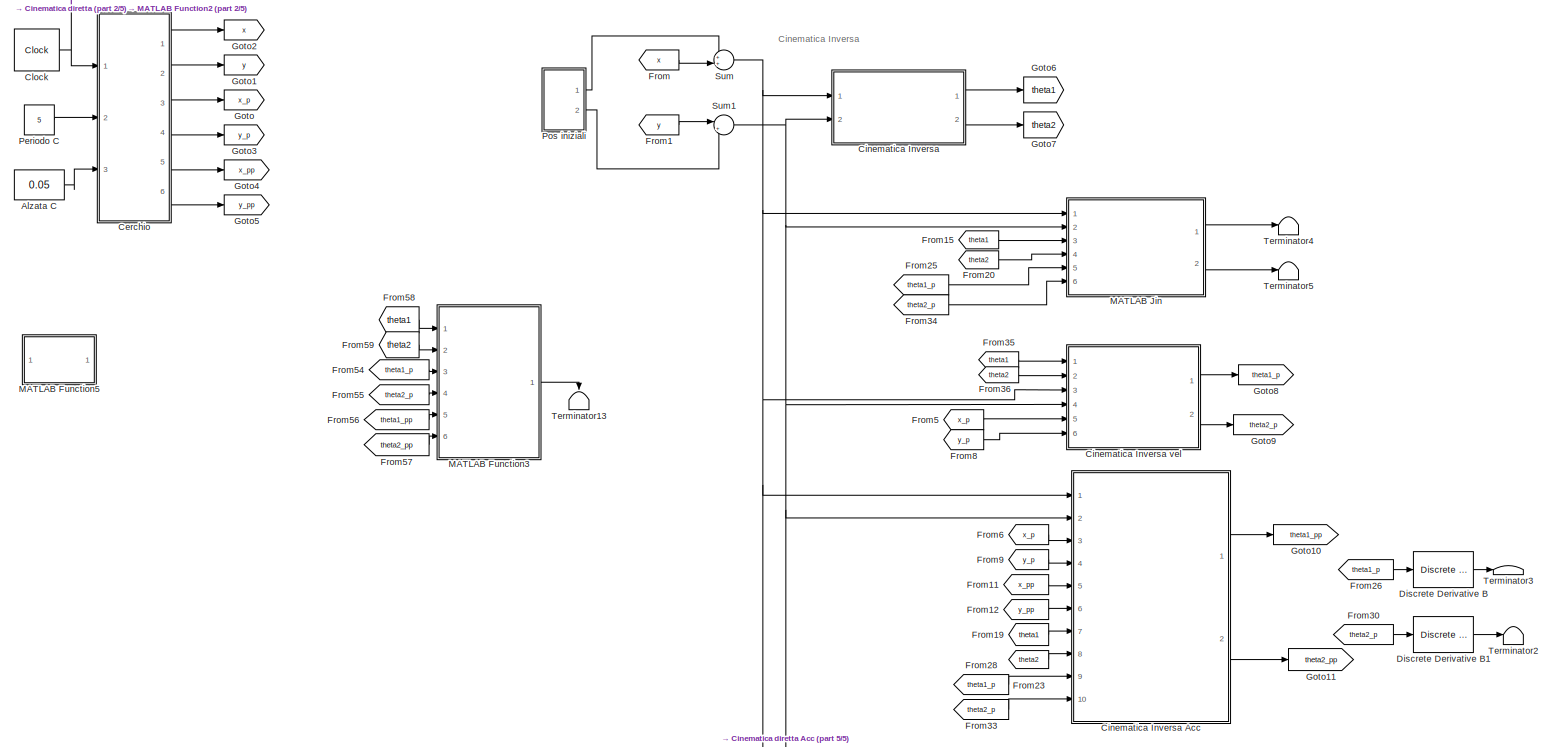
[diagram: root canvas - part 1/5, middle left region]
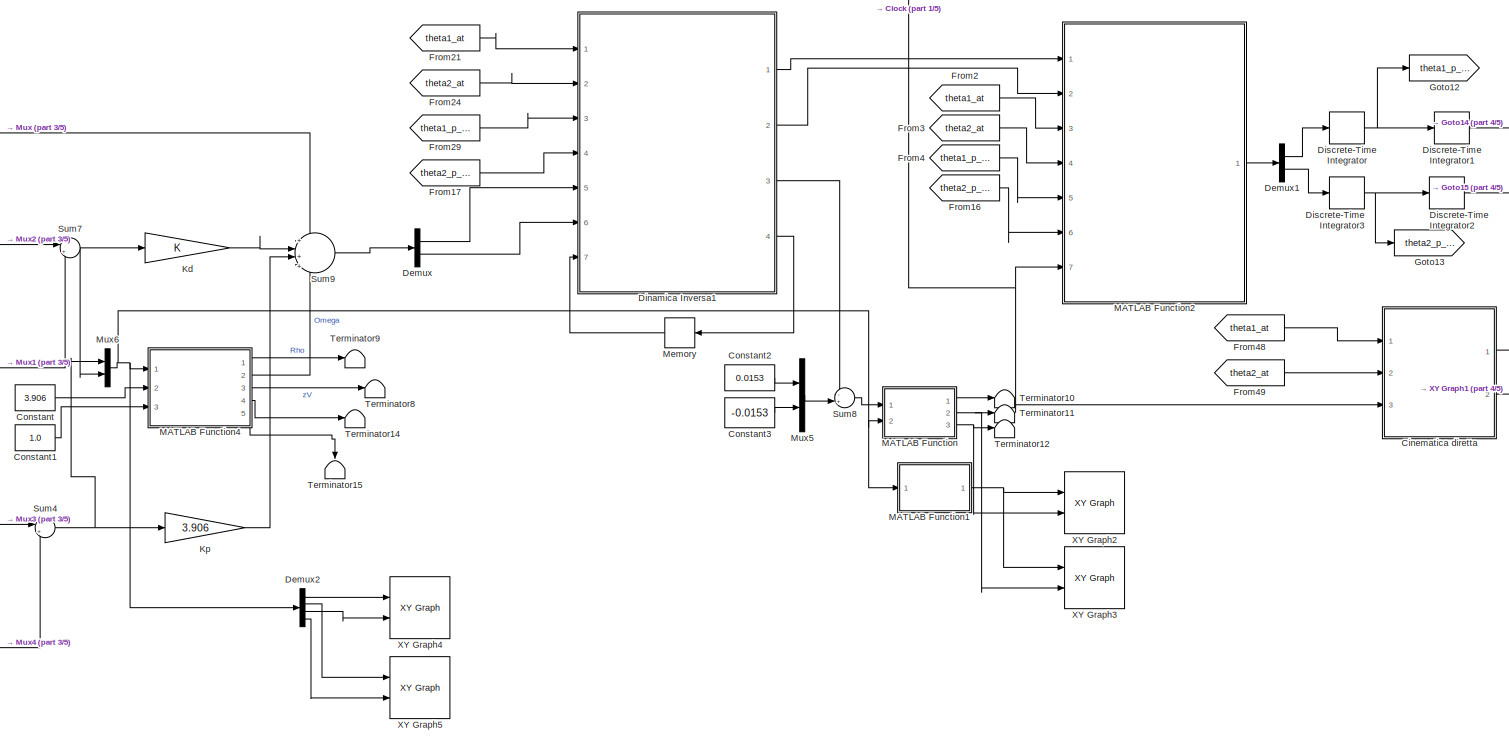
[diagram: root canvas - part 2/5, middle right region]
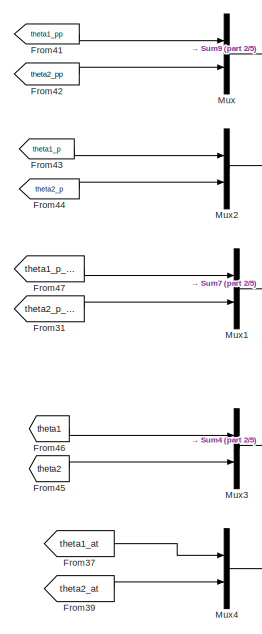
[diagram: root canvas - part 3/5, central region]
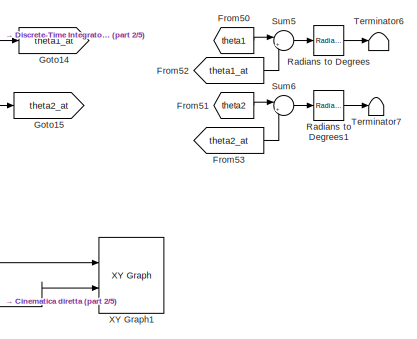
[diagram: root canvas - part 4/5, middle right region]
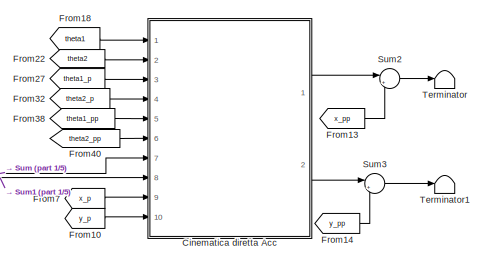
[diagram: root canvas - part 5/5, bottom left region]
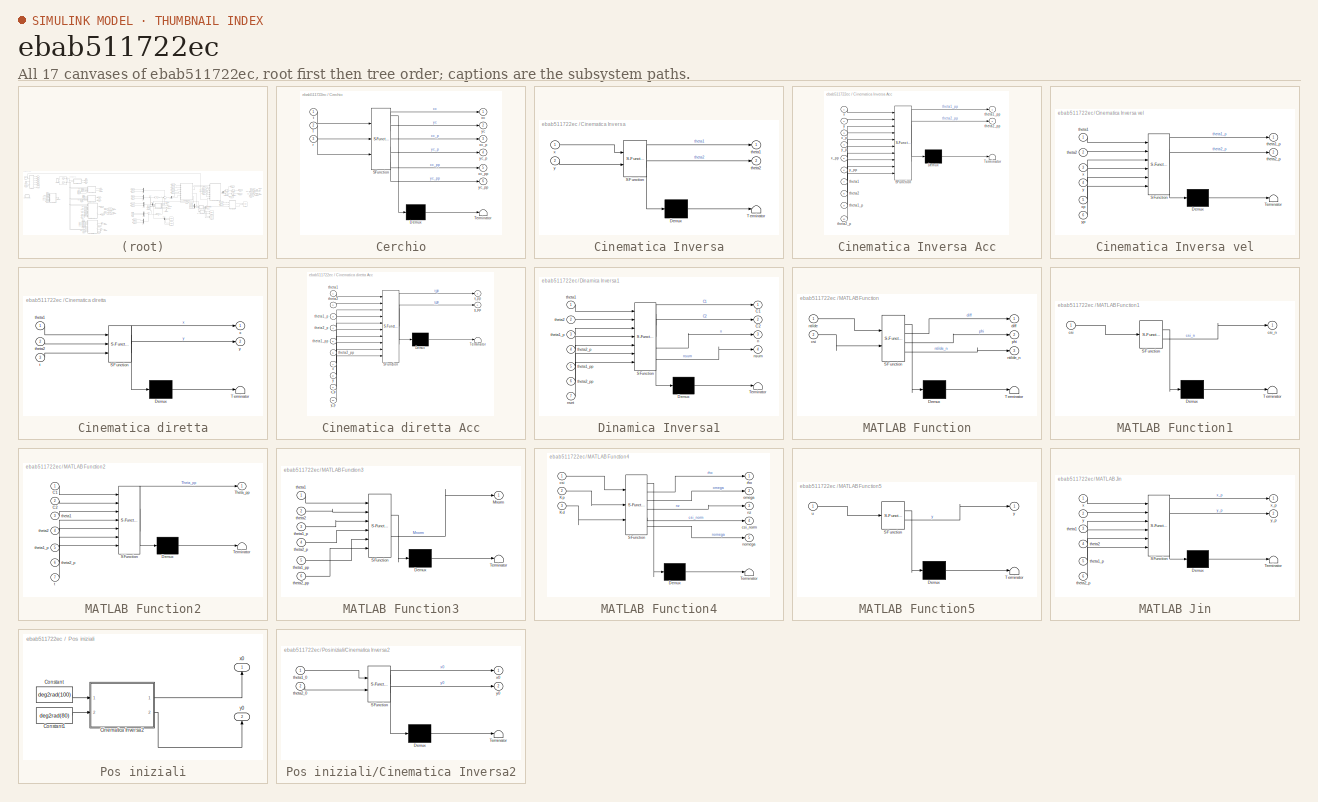
[diagram: thumbnail index - all 17 canvases of the model, root first then tree order]
MODEL slx_ebab511722ec
KIND model
CONFIG AbsTol = auto
CONFIG EnableMultiTasking = off
CONFIG FixedStep = 0.001
CONFIG MaxStep = auto
CONFIG MinStep = auto
CONFIG RelTol = 1e-3
CONFIG SampleTimeConstraint = Unconstrained
CONFIG SolverName = FixedStepDiscrete
CONFIG StartTime = 0.0
CONFIG StopTime = 5
BLOCK [Constant] Alzata C
  Value = 0.05
BLOCK [SubSystem] Cerchio
  ErrorFcn = Stateflow.Translate.translate
  PermitHierarchicalResolution = ExplicitOnly
  Ports = [3, 6]
  RequestExecContextInheritance = off
  SFBlockType = MATLAB Function
  TreatAsAtomicUnit = on
BLOCK [Demux] Cerchio/ Demux 
  Outputs = 1
  Ports = [1, 1]
BLOCK [S-Function] Cerchio/ SFunction 
  EnableBusSupport = on
  FunctionName = sf_sfun
  PortCounts = [3 7]
  Ports = [3, 7]
  SFcnIsStateOwnerBlock = off
  SFunctionDeploymentMode = off
  Tag = Stateflow S-Function 64
BLOCK [Terminator] Cerchio/ Terminator 
BLOCK [Inport] Cerchio/T
  Port = 2
BLOCK [Inport] Cerchio/r
  Port = 3
BLOCK [Inport] Cerchio/t
BLOCK [Outport] Cerchio/xc
BLOCK [Outport] Cerchio/xc_p
  Port = 3
BLOCK [Outport] Cerchio/xc_pp
  Port = 5
BLOCK [Outport] Cerchio/yc
  Port = 2
BLOCK [Outport] Cerchio/yc_p
  Port = 4
BLOCK [Outport] Cerchio/yc_pp
  Port = 6
BLOCK [SubSystem] Cinematica Inversa
  ErrorFcn = Stateflow.Translate.translate
  PermitHierarchicalResolution = ExplicitOnly
  Ports = [2, 2]
  RequestExecContextInheritance = off
  SFBlockType = MATLAB Function
  TreatAsAtomicUnit = on
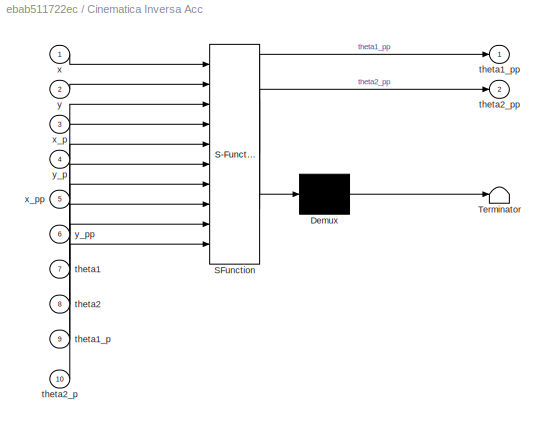
BLOCK [SubSystem] Cinematica Inversa Acc
  ErrorFcn = Stateflow.Translate.translate
  PermitHierarchicalResolution = ExplicitOnly
  Ports = [10, 2]
  RequestExecContextInheritance = off
  SFBlockType = MATLAB Function
  TreatAsAtomicUnit = on
BLOCK [Demux] Cinematica Inversa Acc/ Demux 
  Outputs = 1
  Ports = [1, 1]
BLOCK [S-Function] Cinematica Inversa Acc/ SFunction 
  EnableBusSupport = on
  FunctionName = sf_sfun
  PortCounts = [10 3]
  Ports = [10, 3]
  SFcnIsStateOwnerBlock = off
  SFunctionDeploymentMode = off
  Tag = Stateflow S-Function 69
BLOCK [Terminator] Cinematica Inversa Acc/ Terminator 
BLOCK [Inport] Cinematica Inversa Acc/theta1
  Port = 7
BLOCK [Inport] Cinematica Inversa Acc/theta1_p
  Port = 9
BLOCK [Outport] Cinematica Inversa Acc/theta1_pp
BLOCK [Inport] Cinematica Inversa Acc/theta2
  Port = 8
BLOCK [Inport] Cinematica Inversa Acc/theta2_p
  Port = 10
BLOCK [Outport] Cinematica Inversa Acc/theta2_pp
  Port = 2
BLOCK [Inport] Cinematica Inversa Acc/x
BLOCK [Inport] Cinematica Inversa Acc/x_p
  Port = 3
BLOCK [Inport] Cinematica Inversa Acc/x_pp
  Port = 5
BLOCK [Inport] Cinematica Inversa Acc/y
  Port = 2
BLOCK [Inport] Cinematica Inversa Acc/y_p
  Port = 4
BLOCK [Inport] Cinematica Inversa Acc/y_pp
  Port = 6
BLOCK [SubSystem] Cinematica Inversa vel
  ErrorFcn = Stateflow.Translate.translate
  PermitHierarchicalResolution = ExplicitOnly
  Ports = [6, 2]
  RequestExecContextInheritance = off
  SFBlockType = MATLAB Function
  TreatAsAtomicUnit = on
BLOCK [Demux] Cinematica Inversa vel/ Demux 
  Outputs = 1
  Ports = [1, 1]
BLOCK [S-Function] Cinematica Inversa vel/ SFunction 
  EnableBusSupport = on
  FunctionName = sf_sfun
  PortCounts = [6 3]
  Ports = [6, 3]
  SFcnIsStateOwnerBlock = off
  SFunctionDeploymentMode = off
  Tag = Stateflow S-Function 62
BLOCK [Terminator] Cinematica Inversa vel/ Terminator 
BLOCK [Inport] Cinematica Inversa vel/theta1
BLOCK [Outport] Cinematica Inversa vel/theta1_p
BLOCK [Inport] Cinematica Inversa vel/theta2
  Port = 2
BLOCK [Outport] Cinematica Inversa vel/theta2_p
  Port = 2
BLOCK [Inport] Cinematica Inversa vel/x
  Port = 3
BLOCK [Inport] Cinematica Inversa vel/xp
  Port = 5
BLOCK [Inport] Cinematica Inversa vel/y
  Port = 4
BLOCK [Inport] Cinematica Inversa vel/yp
  Port = 6
BLOCK [Demux] Cinematica Inversa/ Demux 
  Outputs = 1
  Ports = [1, 1]
BLOCK [S-Function] Cinematica Inversa/ SFunction 
  EnableBusSupport = on
  FunctionName = sf_sfun
  PortCounts = [2 3]
  Ports = [2, 3]
  SFcnIsStateOwnerBlock = off
  SFunctionDeploymentMode = off
  Tag = Stateflow S-Function 61
BLOCK [Terminator] Cinematica Inversa/ Terminator 
BLOCK [Outport] Cinematica Inversa/theta1
BLOCK [Outport] Cinematica Inversa/theta2
  Port = 2
BLOCK [Inport] Cinematica Inversa/x
BLOCK [Inport] Cinematica Inversa/y
  Port = 2
BLOCK [SubSystem] Cinematica diretta
  Commented = on
  ErrorFcn = Stateflow.Translate.translate
  PermitHierarchicalResolution = ExplicitOnly
  Ports = [3, 2]
  RequestExecContextInheritance = off
  SFBlockType = MATLAB Function
  TreatAsAtomicUnit = on
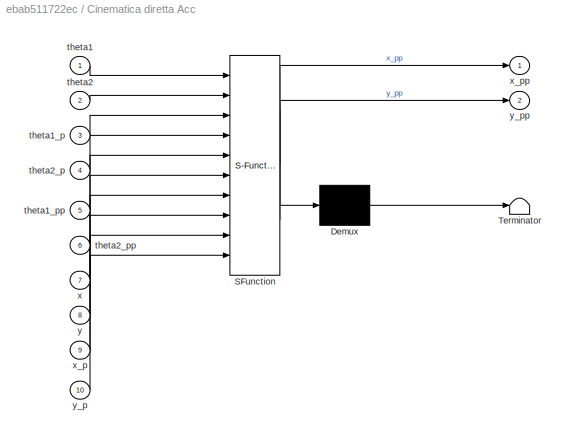
BLOCK [SubSystem] Cinematica diretta Acc
  ErrorFcn = Stateflow.Translate.translate
  PermitHierarchicalResolution = ExplicitOnly
  Ports = [10, 2]
  RequestExecContextInheritance = off
  SFBlockType = MATLAB Function
  TreatAsAtomicUnit = on
BLOCK [Demux] Cinematica diretta Acc/ Demux 
  Outputs = 1
  Ports = [1, 1]
BLOCK [S-Function] Cinematica diretta Acc/ SFunction 
  EnableBusSupport = on
  FunctionName = sf_sfun
  PortCounts = [10 3]
  Ports = [10, 3]
  SFcnIsStateOwnerBlock = off
  SFunctionDeploymentMode = off
  Tag = Stateflow S-Function 70
BLOCK [Terminator] Cinematica diretta Acc/ Terminator 
BLOCK [Inport] Cinematica diretta Acc/theta1
BLOCK [Inport] Cinematica diretta Acc/theta1_p
  Port = 3
BLOCK [Inport] Cinematica diretta Acc/theta1_pp
  Port = 5
BLOCK [Inport] Cinematica diretta Acc/theta2
  Port = 2
BLOCK [Inport] Cinematica diretta Acc/theta2_p
  Port = 4
BLOCK [Inport] Cinematica diretta Acc/theta2_pp
  Port = 6
BLOCK [Inport] Cinematica diretta Acc/x
  Port = 7
BLOCK [Inport] Cinematica diretta Acc/x_p
  Port = 9
BLOCK [Outport] Cinematica diretta Acc/x_pp
BLOCK [Inport] Cinematica diretta Acc/y
  Port = 8
BLOCK [Inport] Cinematica diretta Acc/y_p
  Port = 10
BLOCK [Outport] Cinematica diretta Acc/y_pp
  Port = 2
BLOCK [Demux] Cinematica diretta/ Demux 
  Outputs = 1
  Ports = [1, 1]
BLOCK [S-Function] Cinematica diretta/ SFunction 
  EnableBusSupport = on
  FunctionName = sf_sfun
  PortCounts = [3 3]
  Ports = [3, 3]
  SFcnIsStateOwnerBlock = off
  SFunctionDeploymentMode = off
  Tag = Stateflow S-Function 57
BLOCK [Terminator] Cinematica diretta/ Terminator 
BLOCK [Inport] Cinematica diretta/t
  Port = 3
BLOCK [Inport] Cinematica diretta/theta1
BLOCK [Inport] Cinematica diretta/theta2
  Port = 2
BLOCK [Outport] Cinematica diretta/x
BLOCK [Outport] Cinematica diretta/y
  Port = 2
BLOCK [Clock] Clock
  Decimation = 1
  DisplayTime = on
BLOCK [Constant] Constant
  Value = 3.906
BLOCK [Constant] Constant1
  Value = 1.0
BLOCK [Constant] Constant2
  Value = 0.0153
BLOCK [Constant] Constant3
  Value = -0.0153
BLOCK [Demux] Demux
  Outputs = 2
  Ports = [1, 2]
BLOCK [Demux] Demux1
  Outputs = 2
  Ports = [1, 2]
BLOCK [Demux] Demux2
  Ports = [1, 4]
BLOCK [SubSystem] Dinamica Inversa1
  ErrorFcn = Stateflow.Translate.translate
  PermitHierarchicalResolution = ExplicitOnly
  Ports = [7, 4]
  RequestExecContextInheritance = off
  SFBlockType = MATLAB Function
  TreatAsAtomicUnit = on
BLOCK [Demux] Dinamica Inversa1/ Demux 
  Outputs = 1
  Ports = [1, 1]
BLOCK [S-Function] Dinamica Inversa1/ SFunction 
  EnableBusSupport = on
  FunctionName = sf_sfun
  PortCounts = [7 5]
  Ports = [7, 5]
  SFcnIsStateOwnerBlock = off
  SFunctionDeploymentMode = off
  Tag = Stateflow S-Function 72
BLOCK [Terminator] Dinamica Inversa1/ Terminator 
BLOCK [Outport] Dinamica Inversa1/C1
BLOCK [Outport] Dinamica Inversa1/C2
  Port = 2
BLOCK [Outport] Dinamica Inversa1/n
  Port = 3
BLOCK [Inport] Dinamica Inversa1/nset
  Port = 7
BLOCK [Outport] Dinamica Inversa1/nsum
  Port = 4
BLOCK [Inport] Dinamica Inversa1/theta1
BLOCK [Inport] Dinamica Inversa1/theta1_p
  Port = 3
BLOCK [Inport] Dinamica Inversa1/theta1_pp
  Port = 5
BLOCK [Inport] Dinamica Inversa1/theta2
  Port = 2
BLOCK [Inport] Dinamica Inversa1/theta2_p
  Port = 4
BLOCK [Inport] Dinamica Inversa1/theta2_pp
  Port = 6
BLOCK [Reference] Discrete Derivative B  REF=simulink/Discrete/Discrete Derivative
  Ports = [1, 1]
  SourceBlock = simulink/Discrete/Discrete Derivative
  SourceProductBaseCode = SL
  SourceType = Discrete Derivative
BLOCK [Reference] Discrete Derivative B1  REF=simulink/Discrete/Discrete Derivative
  Ports = [1, 1]
  SourceBlock = simulink/Discrete/Discrete Derivative
  SourceProductBaseCode = SL
  SourceType = Discrete Derivative
BLOCK [DiscreteIntegrator] Discrete-Time Integrator
  ICPrevOutput = DiscIntNeverNeededParam
  ICPrevScaledInput = DiscIntNeverNeededParam
  InitialConditionSetting = Auto
  Ports = [1, 1]
  SampleTime = -1
BLOCK [DiscreteIntegrator] Discrete-Time Integrator1
  ICPrevOutput = DiscIntNeverNeededParam
  ICPrevScaledInput = DiscIntNeverNeededParam
  InitialCondition = deg2rad(100)
  InitialConditionSetting = Auto
  Ports = [1, 1]
  SampleTime = -1
BLOCK [DiscreteIntegrator] Discrete-Time Integrator2
  ICPrevOutput = DiscIntNeverNeededParam
  ICPrevScaledInput = DiscIntNeverNeededParam
  InitialCondition = deg2rad(80)
  InitialConditionSetting = Auto
  Ports = [1, 1]
  SampleTime = -1
BLOCK [DiscreteIntegrator] Discrete-Time Integrator3
  ICPrevOutput = DiscIntNeverNeededParam
  ICPrevScaledInput = DiscIntNeverNeededParam
  InitialConditionSetting = Auto
  Ports = [1, 1]
  SampleTime = -1
BLOCK [From] From
  GotoTag = x
BLOCK [From] From1
  GotoTag = y
BLOCK [From] From10
  GotoTag = y_p
BLOCK [From] From11
  GotoTag = x_pp
BLOCK [From] From12
  GotoTag = y_pp
BLOCK [From] From13
  GotoTag = x_pp
BLOCK [From] From14
  GotoTag = y_pp
BLOCK [From] From15
  GotoTag = theta1
BLOCK [From] From16
  GotoTag = theta2_p_at
BLOCK [From] From17
  GotoTag = theta2_p_at
BLOCK [From] From18
  GotoTag = theta1
BLOCK [From] From19
  GotoTag = theta1
BLOCK [From] From2
  GotoTag = theta1_at
BLOCK [From] From20
  GotoTag = theta2
BLOCK [From] From21
  GotoTag = theta1_at
BLOCK [From] From22
  GotoTag = theta2
BLOCK [From] From23
  GotoTag = theta2
BLOCK [From] From24
  GotoTag = theta2_at
BLOCK [From] From25
  GotoTag = theta1_p
BLOCK [From] From26
  GotoTag = theta1_p
BLOCK [From] From27
  GotoTag = theta1_p
BLOCK [From] From28
  GotoTag = theta1_p
BLOCK [From] From29
  GotoTag = theta1_p_at
BLOCK [From] From3
  GotoTag = theta2_at
BLOCK [From] From30
  GotoTag = theta2_p
BLOCK [From] From31
  GotoTag = theta2_p_at
BLOCK [From] From32
  GotoTag = theta2_p
BLOCK [From] From33
  GotoTag = theta2_p
BLOCK [From] From34
  GotoTag = theta2_p
BLOCK [From] From35
  GotoTag = theta1
BLOCK [From] From36
  GotoTag = theta2
BLOCK [From] From37
  GotoTag = theta1_at
BLOCK [From] From38
  GotoTag = theta1_pp
BLOCK [From] From39
  GotoTag = theta2_at
BLOCK [From] From4
  GotoTag = theta1_p_at
BLOCK [From] From40
  GotoTag = theta2_pp
BLOCK [From] From41
  GotoTag = theta1_pp
BLOCK [From] From42
  GotoTag = theta2_pp
BLOCK [From] From43
  GotoTag = theta1_p
BLOCK [From] From44
  GotoTag = theta2_p
BLOCK [From] From45
  GotoTag = theta2
BLOCK [From] From46
  GotoTag = theta1
BLOCK [From] From47
  GotoTag = theta1_p_at
BLOCK [From] From48
  Commented = on
  GotoTag = theta1_at
BLOCK [From] From49
  Commented = on
  GotoTag = theta2_at
BLOCK [From] From5
  GotoTag = x_p
BLOCK [From] From50
  GotoTag = theta1
BLOCK [From] From51
  GotoTag = theta2
BLOCK [From] From52
  GotoTag = theta1_at
BLOCK [From] From53
  GotoTag = theta2_at
BLOCK [From] From54
  GotoTag = theta1_p
BLOCK [From] From55
  GotoTag = theta2_p
BLOCK [From] From56
  GotoTag = theta1_pp
BLOCK [From] From57
  GotoTag = theta2_pp
BLOCK [From] From58
  GotoTag = theta1
BLOCK [From] From59
  GotoTag = theta2
BLOCK [From] From6
  GotoTag = x_p
BLOCK [From] From7
  GotoTag = x_p
BLOCK [From] From8
  GotoTag = y_p
BLOCK [From] From9
  GotoTag = y_p
BLOCK [Goto] Goto
  GotoTag = x_p
BLOCK [Goto] Goto1
  GotoTag = y
BLOCK [Goto] Goto10
  GotoTag = theta1_pp
BLOCK [Goto] Goto11
  GotoTag = theta2_pp
BLOCK [Goto] Goto12
  GotoTag = theta1_p_at
BLOCK [Goto] Goto13
  GotoTag = theta2_p_at
BLOCK [Goto] Goto14
  GotoTag = theta1_at
BLOCK [Goto] Goto15
  GotoTag = theta2_at
BLOCK [Goto] Goto2
  GotoTag = x
BLOCK [Goto] Goto3
  GotoTag = y_p
BLOCK [Goto] Goto4
  GotoTag = x_pp
BLOCK [Goto] Goto5
  GotoTag = y_pp
BLOCK [Goto] Goto6
  GotoTag = theta1
BLOCK [Goto] Goto7
  GotoTag = theta2
BLOCK [Goto] Goto8
  GotoTag = theta1_p
BLOCK [Goto] Goto9
  GotoTag = theta2_p
BLOCK [Gain] Kd
BLOCK [Gain] Kp
  Gain = 3.906
BLOCK [SubSystem] MATLAB Function
  ErrorFcn = Stateflow.Translate.translate
  PermitHierarchicalResolution = ExplicitOnly
  Ports = [2, 3]
  RequestExecContextInheritance = off
  SFBlockType = MATLAB Function
  TreatAsAtomicUnit = on
BLOCK [Demux] MATLAB Function/ Demux 
  Outputs = 1
  Ports = [1, 1]
BLOCK [S-Function] MATLAB Function/ SFunction 
  EnableBusSupport = on
  FunctionName = sf_sfun
  PortCounts = [2 4]
  Ports = [2, 4]
  SFcnIsStateOwnerBlock = off
  SFunctionDeploymentMode = off
  Tag = Stateflow S-Function 2
BLOCK [Terminator] MATLAB Function/ Terminator 
BLOCK [Inport] MATLAB Function/csi
  Port = 2
BLOCK [Outport] MATLAB Function/diff
BLOCK [Inport] MATLAB Function/ntilde
BLOCK [Outport] MATLAB Function/ntilde_n
  Port = 3
BLOCK [Outport] MATLAB Function/phi
  Port = 2
BLOCK [SubSystem] MATLAB Function1
  ErrorFcn = Stateflow.Translate.translate
  PermitHierarchicalResolution = ExplicitOnly
  Ports = [1, 1]
  RequestExecContextInheritance = off
  SFBlockType = MATLAB Function
  TreatAsAtomicUnit = on
BLOCK [Demux] MATLAB Function1/ Demux 
  Outputs = 1
  Ports = [1, 1]
BLOCK [S-Function] MATLAB Function1/ SFunction 
  EnableBusSupport = on
  FunctionName = sf_sfun
  PortCounts = [1 2]
  Ports = [1, 2]
  SFcnIsStateOwnerBlock = off
  SFunctionDeploymentMode = off
  Tag = Stateflow S-Function 1
BLOCK [Terminator] MATLAB Function1/ Terminator 
BLOCK [Inport] MATLAB Function1/csi
BLOCK [Outport] MATLAB Function1/csi_n
BLOCK [SubSystem] MATLAB Function2
  ErrorFcn = Stateflow.Translate.translate
  PermitHierarchicalResolution = ExplicitOnly
  Ports = [7, 1]
  RequestExecContextInheritance = off
  SFBlockType = MATLAB Function
  TreatAsAtomicUnit = on
BLOCK [Demux] MATLAB Function2/ Demux 
  Outputs = 1
  Ports = [1, 1]
BLOCK [S-Function] MATLAB Function2/ SFunction 
  EnableBusSupport = on
  FunctionName = sf_sfun
  PortCounts = [7 2]
  Ports = [7, 2]
  SFcnIsStateOwnerBlock = off
  SFunctionDeploymentMode = off
  Tag = Stateflow S-Function 3
BLOCK [Terminator] MATLAB Function2/ Terminator 
BLOCK [Inport] MATLAB Function2/C1
BLOCK [Inport] MATLAB Function2/C2
  Port = 2
BLOCK [Outport] MATLAB Function2/Theta_pp
BLOCK [Inport] MATLAB Function2/t
  Port = 7
BLOCK [Inport] MATLAB Function2/theta1
  Port = 3
BLOCK [Inport] MATLAB Function2/theta1_p
  Port = 5
BLOCK [Inport] MATLAB Function2/theta2
  Port = 4
BLOCK [Inport] MATLAB Function2/theta2_p
  Port = 6
BLOCK [SubSystem] MATLAB Function3
  ErrorFcn = Stateflow.Translate.translate
  PermitHierarchicalResolution = ExplicitOnly
  Ports = [6, 1]
  RequestExecContextInheritance = off
  SFBlockType = MATLAB Function
  TreatAsAtomicUnit = on
BLOCK [Demux] MATLAB Function3/ Demux 
  Outputs = 1
  Ports = [1, 1]
BLOCK [S-Function] MATLAB Function3/ SFunction 
  EnableBusSupport = on
  FunctionName = sf_sfun
  PortCounts = [6 2]
  Ports = [6, 2]
  SFcnIsStateOwnerBlock = off
  SFunctionDeploymentMode = off
  Tag = Stateflow S-Function 4
BLOCK [Terminator] MATLAB Function3/ Terminator 
BLOCK [Outport] MATLAB Function3/Mnorm
BLOCK [Inport] MATLAB Function3/theta1
BLOCK [Inport] MATLAB Function3/theta1_p
  Port = 3
BLOCK [Inport] MATLAB Function3/theta1_pp
  Port = 5
BLOCK [Inport] MATLAB Function3/theta2
  Port = 2
BLOCK [Inport] MATLAB Function3/theta2_p
  Port = 4
BLOCK [Inport] MATLAB Function3/theta2_pp
  Port = 6
BLOCK [SubSystem] MATLAB Function4
  ErrorFcn = Stateflow.Translate.translate
  PermitHierarchicalResolution = ExplicitOnly
  Ports = [3, 5]
  RequestExecContextInheritance = off
  SFBlockType = MATLAB Function
  TreatAsAtomicUnit = on
BLOCK [Demux] MATLAB Function4/ Demux 
  Outputs = 1
  Ports = [1, 1]
BLOCK [S-Function] MATLAB Function4/ SFunction 
  EnableBusSupport = on
  FunctionName = sf_sfun
  PortCounts = [3 6]
  Ports = [3, 6]
  SFcnIsStateOwnerBlock = off
  SFunctionDeploymentMode = off
  Tag = Stateflow S-Function 26
BLOCK [Terminator] MATLAB Function4/ Terminator 
BLOCK [Inport] MATLAB Function4/Kd
  Port = 3
BLOCK [Inport] MATLAB Function4/Kp
  Port = 2
BLOCK [Inport] MATLAB Function4/csi
BLOCK [Outport] MATLAB Function4/csi_norm
  Port = 4
BLOCK [Outport] MATLAB Function4/nomega
  Port = 5
BLOCK [Outport] MATLAB Function4/nz
  Port = 3
BLOCK [Outport] MATLAB Function4/omega
  Port = 2
BLOCK [Outport] MATLAB Function4/rho
BLOCK [SubSystem] MATLAB Function5
  Commented = on
  ErrorFcn = Stateflow.Translate.translate
  PermitHierarchicalResolution = ExplicitOnly
  Ports = [1, 1]
  RequestExecContextInheritance = off
  SFBlockType = MATLAB Function
  TreatAsAtomicUnit = on
BLOCK [Demux] MATLAB Function5/ Demux 
  Outputs = 1
  Ports = [1, 1]
BLOCK [S-Function] MATLAB Function5/ SFunction 
  EnableBusSupport = on
  FunctionName = sf_sfun
  PortCounts = [1 2]
  Ports = [1, 2]
  SFcnIsStateOwnerBlock = off
  SFunctionDeploymentMode = off
  Tag = Stateflow S-Function 5
BLOCK [Terminator] MATLAB Function5/ Terminator 
BLOCK [Inport] MATLAB Function5/u
BLOCK [Outport] MATLAB Function5/y
BLOCK [SubSystem] MATLAB Jin
  ErrorFcn = Stateflow.Translate.translate
  PermitHierarchicalResolution = ExplicitOnly
  Ports = [6, 2]
  RequestExecContextInheritance = off
  SFBlockType = MATLAB Function
  TreatAsAtomicUnit = on
BLOCK [Demux] MATLAB Jin/ Demux 
  Outputs = 1
  Ports = [1, 1]
BLOCK [S-Function] MATLAB Jin/ SFunction 
  EnableBusSupport = on
  FunctionName = sf_sfun
  PortCounts = [6 3]
  Ports = [6, 3]
  SFcnIsStateOwnerBlock = off
  SFunctionDeploymentMode = off
  Tag = Stateflow S-Function 63
BLOCK [Terminator] MATLAB Jin/ Terminator 
BLOCK [Inport] MATLAB Jin/theta1
  Port = 3
BLOCK [Inport] MATLAB Jin/theta1_p
  Port = 5
BLOCK [Inport] MATLAB Jin/theta2
  Port = 4
BLOCK [Inport] MATLAB Jin/theta2_p
  Port = 6
BLOCK [Inport] MATLAB Jin/x
BLOCK [Outport] MATLAB Jin/x_p
BLOCK [Inport] MATLAB Jin/y
  Port = 2
BLOCK [Outport] MATLAB Jin/y_p
  Port = 2
BLOCK [Memory] Memory
  NameLocation = top
BLOCK [Mux] Mux
  DisplayOption = bar
  Inputs = 2
  Ports = [2, 1]
BLOCK [Mux] Mux1
  DisplayOption = bar
  Inputs = 2
  Ports = [2, 1]
BLOCK [Mux] Mux2
  DisplayOption = bar
  Inputs = 2
  Ports = [2, 1]
BLOCK [Mux] Mux3
  DisplayOption = bar
  Inputs = 2
  Ports = [2, 1]
BLOCK [Mux] Mux4
  DisplayOption = bar
  Inputs = 2
  Ports = [2, 1]
BLOCK [Mux] Mux5
  DisplayOption = bar
  Inputs = 2
  Ports = [2, 1]
BLOCK [Mux] Mux6
  DisplayOption = bar
  Inputs = 2
  Ports = [2, 1]
BLOCK [Constant] Periodo C
  Value = 5
BLOCK [SubSystem] Pos iniziali
  Ports = [0, 2]
  RequestExecContextInheritance = off
BLOCK [SubSystem] Pos iniziali/Cinematica Inversa2
  ErrorFcn = Stateflow.Translate.translate
  PermitHierarchicalResolution = ExplicitOnly
  Ports = [2, 2]
  RequestExecContextInheritance = off
  SFBlockType = MATLAB Function
  TreatAsAtomicUnit = on
BLOCK [Demux] Pos iniziali/Cinematica Inversa2/ Demux 
  Outputs = 1
  Ports = [1, 1]
BLOCK [S-Function] Pos iniziali/Cinematica Inversa2/ SFunction 
  EnableBusSupport = on
  FunctionName = sf_sfun
  PortCounts = [2 3]
  Ports = [2, 3]
  SFcnIsStateOwnerBlock = off
  SFunctionDeploymentMode = off
  Tag = Stateflow S-Function 58
BLOCK [Terminator] Pos iniziali/Cinematica Inversa2/ Terminator 
BLOCK [Inport] Pos iniziali/Cinematica Inversa2/theta1_0
BLOCK [Inport] Pos iniziali/Cinematica Inversa2/theta2_0
  Port = 2
BLOCK [Outport] Pos iniziali/Cinematica Inversa2/x0
BLOCK [Outport] Pos iniziali/Cinematica Inversa2/y0
  Port = 2
BLOCK [Constant] Pos iniziali/Constant
  Value = deg2rad(100)
BLOCK [Constant] Pos iniziali/Constant1
  Value = deg2rad(80)
BLOCK [Outport] Pos iniziali/x0
  NameLocation = right
BLOCK [Outport] Pos iniziali/y0
  NameLocation = right
  Port = 2
BLOCK [Reference] Radians to Degrees  REF=simulink_extras/Transformations/Radians
to Degrees
  Ports = [1, 1]
  SourceBlock = simulink_extras/Transformations/Radians\nto Degrees
  SourceProductBaseCode = SL
  SourceType = RadiansToDegrees
BLOCK [Reference] Radians to Degrees1  REF=simulink_extras/Transformations/Radians
to Degrees
  Ports = [1, 1]
  SourceBlock = simulink_extras/Transformations/Radians\nto Degrees
  SourceProductBaseCode = SL
  SourceType = RadiansToDegrees
BLOCK [Sum] Sum
  Inputs = ++|
  Ports = [2, 1]
BLOCK [Sum] Sum1
  Inputs = |++
  Ports = [2, 1]
BLOCK [Sum] Sum2
  Inputs = |+-
  Ports = [2, 1]
BLOCK [Sum] Sum3
  Inputs = |+-
  Ports = [2, 1]
BLOCK [Sum] Sum4
  Inputs = |+-
  Ports = [2, 1]
BLOCK [Sum] Sum5
  Inputs = |+-
  Ports = [2, 1]
BLOCK [Sum] Sum6
  Inputs = |+-
  Ports = [2, 1]
BLOCK [Sum] Sum7
  Inputs = |+-
  Ports = [2, 1]
BLOCK [Sum] Sum8
  Inputs = -+|
  Ports = [2, 1]
BLOCK [Sum] Sum9
  Inputs = +|+|+|+
  Ports = [4, 1]
BLOCK [Terminator] Terminator
BLOCK [Terminator] Terminator1
BLOCK [Terminator] Terminator10
BLOCK [Terminator] Terminator11
BLOCK [Terminator] Terminator12
BLOCK [Terminator] Terminator13
  NameLocation = left
BLOCK [Terminator] Terminator14
BLOCK [Terminator] Terminator15
  NameLocation = left
BLOCK [Terminator] Terminator2
BLOCK [Terminator] Terminator3
BLOCK [Terminator] Terminator4
BLOCK [Terminator] Terminator5
BLOCK [Terminator] Terminator6
BLOCK [Terminator] Terminator7
BLOCK [Terminator] Terminator8
BLOCK [Terminator] Terminator9
BLOCK [Reference] XY Graph1  REF=simulink/Sinks/XY Graph
  Commented = on
  Ports = [2]
  SourceBlock = simulink/Sinks/XY Graph
  SourceProductBaseCode = SL
  SourceType = XY scope.
BLOCK [Reference] XY Graph2  REF=simulink/Sinks/XY Graph
  Ports = [2]
  SourceBlock = simulink/Sinks/XY Graph
  SourceProductBaseCode = SL
  SourceType = XY scope.
BLOCK [Reference] XY Graph3  REF=simulink/Sinks/XY Graph
  Ports = [2]
  SourceBlock = simulink/Sinks/XY Graph
  SourceProductBaseCode = SL
  SourceType = XY scope.
BLOCK [Reference] XY Graph4  REF=simulink/Sinks/XY Graph
  Ports = [2]
  SourceBlock = simulink/Sinks/XY Graph
  SourceProductBaseCode = SL
  SourceType = XY scope.
BLOCK [Reference] XY Graph5  REF=simulink/Sinks/XY Graph
  Ports = [2]
  SourceBlock = simulink/Sinks/XY Graph
  SourceProductBaseCode = SL
  SourceType = XY scope.
ANNOTATION (root): Cinematica Inversa
LINE Alzata C:1 -> Cerchio:3
LINE Cerchio:1 -> Goto2:1
LINE Cerchio:2 -> Goto1:1
LINE Cerchio:3 -> Goto:1
LINE Cerchio:4 -> Goto3:1
LINE Cerchio:5 -> Goto4:1
LINE Cerchio:6 -> Goto5:1
LINE Cinematica Inversa Acc:1 -> Goto10:1
LINE Cinematica Inversa Acc:2 -> Goto11:1
LINE Cinematica Inversa vel:1 -> Goto8:1
LINE Cinematica Inversa vel:2 -> Goto9:1
LINE Cinematica Inversa:1 -> Goto6:1
LINE Cinematica Inversa:2 -> Goto7:1
LINE Cinematica diretta Acc:1 -> Sum2:1
LINE Cinematica diretta Acc:2 -> Sum3:1
LINE Cinematica diretta:1 -> XY Graph1:1
LINE Cinematica diretta:2 -> XY Graph1:2
NET Clock:1 -> Cerchio:1, Cinematica diretta:3, MATLAB Function2:7
LINE Constant1:1 -> MATLAB Function4:3
LINE Constant2:1 -> Mux5:1
LINE Constant3:1 -> Mux5:2
LINE Constant:1 -> MATLAB Function4:2
LINE Demux1:1 -> Discrete-Time Integrator:1
LINE Demux1:2 -> Discrete-Time Integrator3:1
LINE Demux2:1 -> XY Graph4:1
LINE Demux2:2 -> XY Graph5:1
LINE Demux2:3 -> XY Graph4:2
LINE Demux2:4 -> XY Graph5:2
LINE Demux:1 -> Dinamica Inversa1:5
LINE Demux:2 -> Dinamica Inversa1:6
LINE Dinamica Inversa1:1 -> MATLAB Function2:1
LINE Dinamica Inversa1:2 -> MATLAB Function2:2
LINE Dinamica Inversa1:3 -> Sum8:1
LINE Dinamica Inversa1:4 -> Memory:1
LINE Discrete Derivative B1:1 -> Terminator2:1
LINE Discrete Derivative B:1 -> Terminator3:1
LINE Discrete-Time Integrator1:1 -> Goto14:1
LINE Discrete-Time Integrator2:1 -> Goto15:1
NET Discrete-Time Integrator3:1 -> Discrete-Time Integrator2:1, Goto13:1
NET Discrete-Time Integrator:1 -> Discrete-Time Integrator1:1, Goto12:1
LINE From10:1 -> Cinematica diretta Acc:10
LINE From11:1 -> Cinematica Inversa Acc:5
LINE From12:1 -> Cinematica Inversa Acc:6
LINE From13:1 -> Sum2:2
LINE From14:1 -> Sum3:2
LINE From15:1 -> MATLAB Jin:3
LINE From16:1 -> MATLAB Function2:6
LINE From17:1 -> Dinamica Inversa1:4
LINE From18:1 -> Cinematica diretta Acc:1
LINE From19:1 -> Cinematica Inversa Acc:7
LINE From1:1 -> Sum1:1
LINE From20:1 -> MATLAB Jin:4
LINE From21:1 -> Dinamica Inversa1:1
LINE From22:1 -> Cinematica diretta Acc:2
LINE From23:1 -> Cinematica Inversa Acc:8
LINE From24:1 -> Dinamica Inversa1:2
LINE From25:1 -> MATLAB Jin:5
LINE From26:1 -> Discrete Derivative B:1
LINE From27:1 -> Cinematica diretta Acc:3
LINE From28:1 -> Cinematica Inversa Acc:9
LINE From29:1 -> Dinamica Inversa1:3
LINE From2:1 -> MATLAB Function2:3
LINE From30:1 -> Discrete Derivative B1:1
LINE From31:1 -> Mux1:2
LINE From32:1 -> Cinematica diretta Acc:4
LINE From33:1 -> Cinematica Inversa Acc:10
LINE From34:1 -> MATLAB Jin:6
LINE From35:1 -> Cinematica Inversa vel:1
LINE From36:1 -> Cinematica Inversa vel:2
LINE From37:1 -> Mux4:1
LINE From38:1 -> Cinematica diretta Acc:5
LINE From39:1 -> Mux4:2
LINE From3:1 -> MATLAB Function2:4
LINE From40:1 -> Cinematica diretta Acc:6
LINE From41:1 -> Mux:1
LINE From42:1 -> Mux:2
LINE From43:1 -> Mux2:1
LINE From44:1 -> Mux2:2
LINE From45:1 -> Mux3:2
LINE From46:1 -> Mux3:1
LINE From47:1 -> Mux1:1
LINE From48:1 -> Cinematica diretta:1
LINE From49:1 -> Cinematica diretta:2
LINE From4:1 -> MATLAB Function2:5
LINE From50:1 -> Sum5:1
LINE From51:1 -> Sum6:1
LINE From52:1 -> Sum5:2
LINE From53:1 -> Sum6:2
LINE From54:1 -> MATLAB Function3:3
LINE From55:1 -> MATLAB Function3:4
LINE From56:1 -> MATLAB Function3:5
LINE From57:1 -> MATLAB Function3:6
LINE From58:1 -> MATLAB Function3:1
LINE From59:1 -> MATLAB Function3:2
LINE From5:1 -> Cinematica Inversa vel:5
LINE From6:1 -> Cinematica Inversa Acc:3
LINE From7:1 -> Cinematica diretta Acc:9
LINE From8:1 -> Cinematica Inversa vel:6
LINE From9:1 -> Cinematica Inversa Acc:4
LINE From:1 -> Sum:2
LINE Kd:1 -> Sum9:2
LINE Kp:1 -> Sum9:3
NET MATLAB Function1:1 -> XY Graph2:1, XY Graph3:1
LINE MATLAB Function2:1 -> Demux1:1
LINE MATLAB Function3:1 -> Terminator13:1
LINE MATLAB Function4:1 -> Terminator9:1
LINE MATLAB Function4:2 -> Sum9:4
LINE MATLAB Function4:3 -> Terminator8:1
LINE MATLAB Function4:4 -> Terminator14:1
LINE MATLAB Function4:5 -> Terminator15:1
LINE MATLAB Function:1 -> Terminator10:1
NET MATLAB Function:2 -> Terminator11:1, XY Graph3:2
NET MATLAB Function:3 -> Terminator12:1, XY Graph2:2
LINE MATLAB Jin:1 -> Terminator4:1
LINE MATLAB Jin:2 -> Terminator5:1
LINE Memory:1 -> Dinamica Inversa1:7
LINE Mux1:1 -> Sum7:2
LINE Mux2:1 -> Sum7:1
LINE Mux3:1 -> Sum4:1
LINE Mux4:1 -> Sum4:2
LINE Mux5:1 -> Sum8:2
NET Mux6:1 -> Demux2:1, MATLAB Function1:1, MATLAB Function4:1, MATLAB Function:2
LINE Mux:1 -> Sum9:1
LINE Periodo C:1 -> Cerchio:2
LINE Pos iniziali/Cinematica Inversa2:1 -> Pos iniziali/x0:1
LINE Pos iniziali/Cinematica Inversa2:2 -> Pos iniziali/y0:1
LINE Pos iniziali/Constant1:1 -> Pos iniziali/Cinematica Inversa2:2
LINE Pos iniziali/Constant:1 -> Pos iniziali/Cinematica Inversa2:1
LINE Pos iniziali:1 -> Sum:1
LINE Pos iniziali:2 -> Sum1:2
LINE Radians to Degrees1:1 -> Terminator7:1
LINE Radians to Degrees:1 -> Terminator6:1
NET Sum1:1 -> Cinematica Inversa Acc:2, Cinematica Inversa vel:4, Cinematica Inversa:2, Cinematica diretta Acc:8, MATLAB Jin:2
LINE Sum2:1 -> Terminator:1
LINE Sum3:1 -> Terminator1:1
NET Sum4:1 -> Kp:1, Mux6:1
LINE Sum5:1 -> Radians to Degrees:1
LINE Sum6:1 -> Radians to Degrees1:1
NET Sum7:1 -> Kd:1, Mux6:2
LINE Sum8:1 -> MATLAB Function:1
LINE Sum9:1 -> Demux:1
NET Sum:1 -> Cinematica Inversa Acc:1, Cinematica Inversa vel:3, Cinematica Inversa:1, Cinematica diretta Acc:7, MATLAB Jin:1
note: NET lines group one-source signal fan-out (src -> all destinations, sorted); 1:1 wires keep LINE
CHART Cinematica diretta states=1 transitions=1
  STATE_LABEL 'eML_blk_kernel()'
  STATE_LABEL 'SCRIPT:\nfunction [x, y] = fcn(theta1, theta2,t)\nd = 0.09;\nl = 0.25;\n\n\nA = l^2*(sin(theta2)-sin(theta1))^2 + (-2*d -l*(cos(theta2)-cos(theta1)))^2;\nB = -2*l^2*d*(sin(theta2)-sin(theta1))*(cos(theta2)+cos(theta1)) + ...\n    l*(sin(theta2)-sin(theta1))*(-2*d -l*(cos(theta2)-cos(theta1)))*(-2*d -2*l*cos(theta2)) - ...\n    2*l*sin(theta2)*(-2*d -l*(cos(theta2)-cos(theta1)))^2;\nC = l^2*d^2*(cos(theta2)+...<+385ch>'
CHART Pos iniziali/Cinematica Inversa2 states=1 transitions=1
  STATE_LABEL 'eML_blk_kernel()'
  STATE_LABEL 'SCRIPT:\nfunction [x0, y0] = fcn(theta1_0, theta2_0)\n\nd = 0.09; \nl = 0.25;\n\nA = l^2*(sin(theta2_0)-sin(theta1_0))^2 + (-2*d -l*(cos(theta2_0)-cos(theta1_0)))^2;\nB = -2*l^2*d*(sin(theta2_0)-sin(theta1_0))*(cos(theta2_0)+cos(theta1_0)) + ...\n    l*(sin(theta2_0)-sin(theta1_0))*(-2*d -l*(cos(theta2_0)-cos(theta1_0)))*(-2*d -2*l*cos(theta2_0)) - ...\n    2*l*sin(theta2_0)*(-2*d -l*(cos(theta2_0)-cos(the...<+458ch>'
CHART Cinematica Inversa states=1 transitions=1
  STATE_LABEL 'eML_blk_kernel()'
  STATE_LABEL 'SCRIPT:\nfunction [theta1, theta2] = fcn(x, y)\n\nd = 0.09; \nl = 0.25;\n\np = 2*d*l + 2*x*l;\ne = 2*y*l;\nf = x^2 + d^2 + y^2 + 2*x*d;\na = -2*d*l + 2*x*l;\nb = +2*y*l;\nc = x^2 + d^2 + y^2 - 2*x*d;\n\n\n\n   theta1 = 2*atan2(e + sqrt(p^2 + e^2 -f^2), p +f);\n\n\n   theta2 = 2*atan2(b - sqrt(a^2 + b^2 -c^2), a +c);\n   if (theta2) < -deg2rad(200)\n       theta2 = theta2 + 2*pi;\n   end           \n'
CHART Cinematica Inversa vel states=1 transitions=1
  STATE_LABEL 'eML_blk_kernel()'
  STATE_LABEL 'SCRIPT:\nfunction [theta1_p, theta2_p] = fcn(theta1, theta2,x, y, xp, yp)\n\nd = 0.09; \nl = 0.25;\n\nN21 = -l*sin(theta1)*(x+d-l*cos(theta1)) + l*cos(theta1)*(y-l*sin(theta1));\n\nN22 = -l*cos(theta2)*(y-l*sin(theta2))*(x+d-l*cos(theta1))/(x-d-l*cos(theta2)) + l*sin(theta2)*(x+d-l*cos(theta1));\n\nD2 = y-l*sin(theta1) - (y-l*sin(theta2))*(x+d-l*cos(theta1))/(x-d-l*cos(theta2));\n\nJ21 = N21/D2;\n\nJ22 = N22/D2...<+277ch>'
CHART MATLAB Jin states=1 transitions=1
  STATE_LABEL 'eML_blk_kernel()'
  STATE_LABEL 'SCRIPT:\nfunction [x_p, y_p] = fcn(x, y, theta1, theta2, theta1_p, theta2_p)\n\nd = 0.09; \nl = 0.25;\n\nN21 = -l*sin(theta1)*(x+d-l*cos(theta1)) + l*cos(theta1)*(y-l*sin(theta1));\n\nN22 = -l*cos(theta2)*(y-l*sin(theta2))*(x+d-l*cos(theta1))/(x-d-l*cos(theta2)) + l*sin(theta2)*(x+d-l*cos(theta1));\n\nD2 = y-l*sin(theta1) - (y-l*sin(theta2))*(x+d-l*cos(theta1))/(x-d-l*cos(theta2));\n\nJ21 = N21/D2;\n\nJ22 = N22...<+253ch>'
CHART Cerchio states=1 transitions=1
  STATE_LABEL 'eML_blk_kernel()'
  STATE_LABEL 'SCRIPT:\nfunction [xc, yc, xc_p, yc_p, xc_pp, yc_pp] = fcn(t, T, r)\nxv = 0.4;\nxj = 0.1;\nx = t/T;\nCa = 1/((1-xv)*(xv-xj));\nif ( x >= 0 && x < xj)            %acc crescente positiva\n    f = Ca/xj*x;\n    F = (1/2)*Ca/xj*x^2;\n    G = (1/6)*Ca/xj*x^3;\n    J = Ca/xj;\n\n  elseif (x >= xj && x < (xv-xj))   %acc costante positiva\n    f = Ca;\n    F = Ca*x - (1/2)*Ca*xj;\n    G = (1/2)*Ca*x^2 - (1/2)*Ca*xj*x + ...<+1742ch>'
CHART Cinematica Inversa Acc states=1 transitions=1
  STATE_LABEL 'eML_blk_kernel()'
  STATE_LABEL 'SCRIPT:\nfunction [theta1_pp, theta2_pp] = CinInvAcc(x, y, x_p, y_p, x_pp, y_pp, theta1, theta2, theta1_p,theta2_p)\n\nd = 0.09; \nl = 0.25;\n\nN21 = -l*sin(theta1)*(x+d-l*cos(theta1)) + l*cos(theta1)*(y-l*sin(theta1));\n\nN22 = -l*cos(theta2)*(y-l*sin(theta2))*(x+d-l*cos(theta1))/(x-d-l*cos(theta2)) + l*sin(theta2)*(x+d-l*cos(theta1));\n\nD2 = y-l*sin(theta1) - (y-l*sin(theta2))*(x+d-l*cos(theta1))/(x-d-l*...<+3608ch>'
CHART Cinematica diretta Acc states=1 transitions=1
  STATE_LABEL 'eML_blk_kernel()'
  STATE_LABEL 'SCRIPT:\nfunction [x_pp, y_pp] = fcn(theta1, theta2, theta1_p, theta2_p, theta1_pp, theta2_pp, x, y, x_p, y_p)\n\nd = 0.09; \nl = 0.25;\n\nA = x_p^2 + 2*l*sin(theta2)*x_p*theta2_p + (l*sin(theta2)*theta2_p)^2 + (x-d-l*cos(theta2))*(l*cos(theta2)*theta2_p^2 + l*sin(theta2)*theta2_pp) +...\n    y_p^2 - 2*l*cos(theta2)*y_p*theta2_p + (l*cos(theta2)*theta2_p)^2 + (y-l*sin(theta2))*(l*sin(theta2)*theta2_p^2 -...<+515ch>'
CHART Dinamica Inversa1 states=1 transitions=1
  STATE_LABEL 'eML_blk_kernel()'
  STATE_LABEL 'SCRIPT:\nfunction [C1, C2,n, nsum] = Dinamica_Inversa(theta1,theta2,theta1_p,theta2_p,theta1_pp,theta2_pp, nset)\nd = 0.09;\nl = 0.25;\nm = 2.9;\nme = 0.36;\npv = 0.02;\nJv = 6.4e-06;\nJ = 5.22e-02;\n\nA1 = cos(theta1)*theta1_p^2 + sin(theta1)*theta1_pp;\nA2 = cos(theta2)*theta2_p^2 + sin(theta2)*theta2_pp;\nB1 = -sin(theta1)*theta1_p^2 + cos(theta1)*theta1_pp;\nB2 = -sin(theta2)*theta2_p^2 + cos(theta2)*theta...<+3608ch>'
CHART MATLAB Function1 states=1 transitions=1
  STATE_LABEL 'eML_blk_kernel()'
  STATE_LABEL 'SCRIPT:\nfunction csi_n = fcn(csi)\n\ncsi_n = norm(csi);\n'
CHART MATLAB Function states=1 transitions=1
  STATE_LABEL 'eML_blk_kernel()'
  STATE_LABEL 'SCRIPT:\nfunction [diff, phi, ntilde_n] = fcn(ntilde,csi)\na0 = 0.05;\na1 = 5;\na2 = -50; %\nphi = a0 + a1*norm(csi) + a2*norm(csi)^2;\ndiff = norm(ntilde) - phi;\nntilde_n = norm(ntilde);'
CHART MATLAB Function2 states=1 transitions=1
  STATE_LABEL 'eML_blk_kernel()'
  STATE_LABEL 'SCRIPT:\nfunction Theta_pp  = fcn(C1, C2, theta1, theta2, theta1_p, theta2_p,t)\n\nif t <= 0.001\n    theta1 = deg2rad(100);\n    theta1_p = 0;\n    theta2 = deg2rad(80);\n    theta2_p = 0;\nend\n\n\nd = 0.09;\nl = 0.25;\nm = 2.9;\nme = 0.36;\npv = 0.02;\nJv = 6.4e-06;\nJ = 5.22e-02;\n\n\ntheta3 = 2*atan((sin(theta2) - sin(theta1) + ((cos(theta2) - cos(theta1) + 18/25)^2 - ((cos(theta2) - cos(theta1) + 18/25)^2/2 +.....<+3608ch>'
CHART MATLAB Function3 states=1 transitions=1
  STATE_LABEL 'eML_blk_kernel()'
  STATE_LABEL 'SCRIPT:\nfunction Mnorm  = fcn(theta1,theta2,theta1_p,theta2_p,theta1_pp,theta2_pp)\n\nd = 0.09;\nl = 0.25;\nm = 2.9;\nme = 0.36;\npv = 0.02;\nJv = 6.4e-06;\nJ = 5.22e-02;\n\n \nA1 = cos(theta1)*theta1_p^2 + sin(theta1)*theta1_pp;\nA2 = cos(theta2)*theta2_p^2 + sin(theta2)*theta2_pp;\nB1 = -sin(theta1)*theta1_p^2 + cos(theta1)*theta1_pp;\nB2 = -sin(theta2)*theta2_p^2 + cos(theta2)*theta2_pp;\n\n\ntheta3 = 2*atan((s...<+3608ch>'
CHART MATLAB Function5 states=1 transitions=1
  STATE_LABEL 'eML_blk_kernel()'
  STATE_LABEL 'SCRIPT:\nfunction y = fcn(u)\nx = t/T;\n\nif( x >= 0 && x <= 1 )\n    J = 60-180*3*x+360*(x^2);\n    f = 60*x-180*(x^2)+120*(x^3);\n    F = 30*(x^2)-60*(x^3)+30*(x^4);\n    G = 10*(x^3)-15*(x^4)+6*(x^5);\nelse\n    J=0;\n    f=0;\n    F=0;\n    G=0;\nend'
CHART MATLAB Function4 states=1 transitions=1
  STATE_LABEL 'eML_blk_kernel()'
  STATE_LABEL 'SCRIPT:\nfunction [rho,omega,nz,csi_norm,nomega ] = fcn(csi,Kp,Kd)\n% Mm e Nm si riescono a ricavare dallo script TestMatriciTheta\n\nMaxnorm =  0.609; %3.3415; %1.4604e+04;\nMinnorm =  0.420; %0.0012; %9.5631e+03;\nalpha = (Maxnorm-Minnorm)/(Maxnorm+Minnorm);\nMhat = 2/(Maxnorm+Minnorm)*eye(2);\n\n% Calcolo Phi(||Csi||)\nalpha0 = 0.05;\nalpha1 = 5;\nalpha2 = -5;\n\ncsiH = csi;\ny = norm(csiH);\nphi = alpha0+alph...<+1014ch>'
CHART  states=0 transitions=0
CHART  states=0 transitions=0
CHART  states=0 transitions=0
CHART  states=0 transitions=0
CHART  states=0 transitions=0
CHART  states=0 transitions=0
CHART  states=0 transitions=0
CHART  states=0 transitions=0
CHART  states=0 transitions=0
CHART  states=0 transitions=0
CHART  states=0 transitions=0
CHART  states=0 transitions=0
CHART  states=0 transitions=0
CHART  states=0 transitions=0
CHART  states=0 transitions=0
